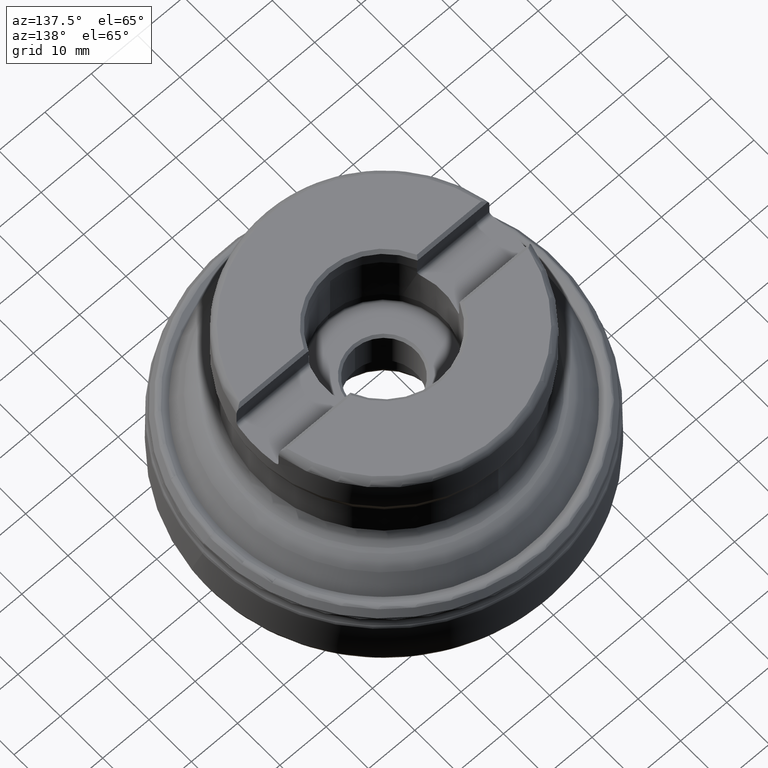
[diagram: clean part render]
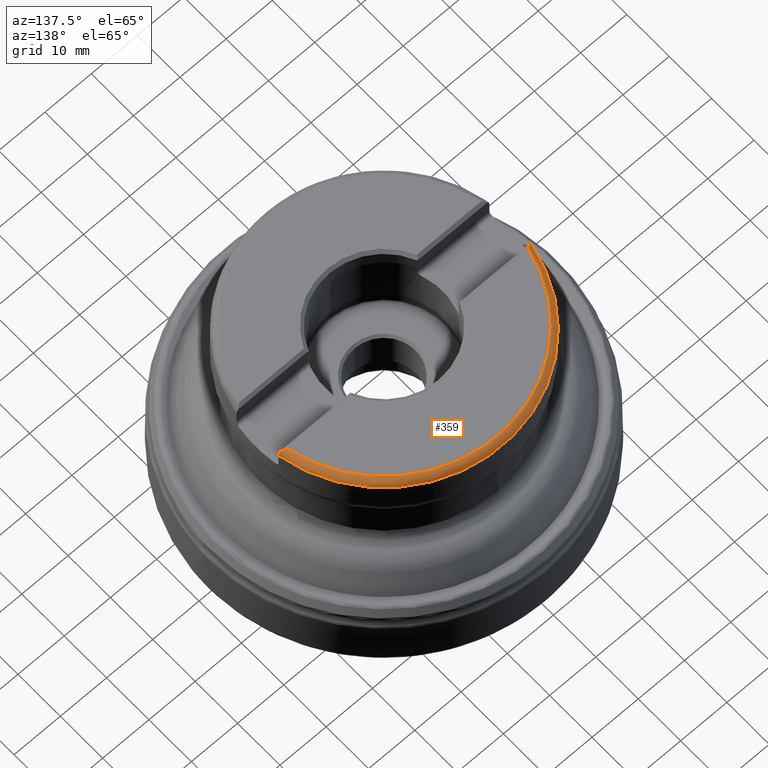
[diagram: same view with one face highlighted and labeled with its STEP entity id]
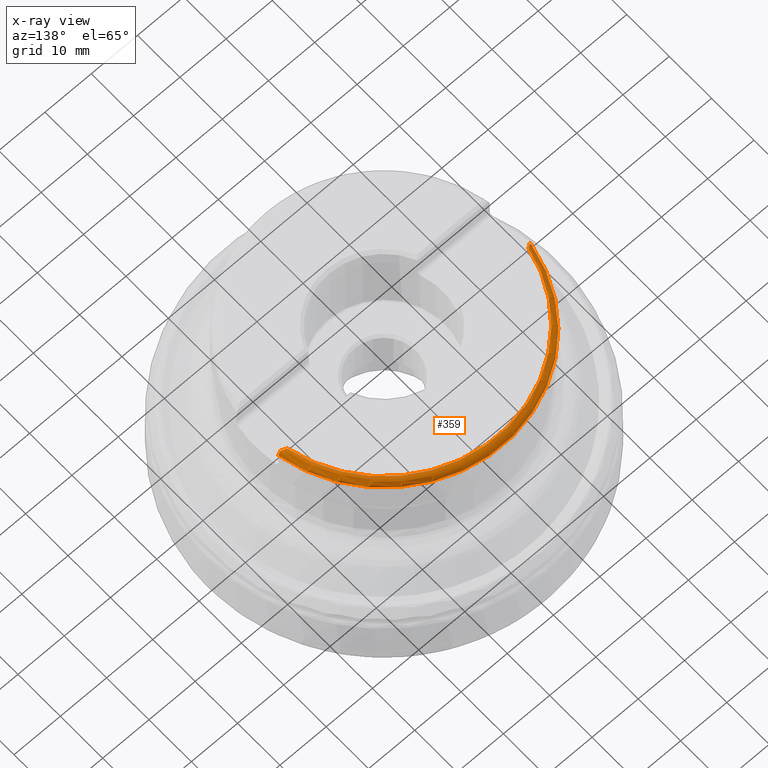
[diagram: x-ray of the same camera — body ghosted, the highlighted face saturated]
A machine part, auxiliary view. The second image highlights one B-rep face of the part: STEP entity #359.
The next image is the same camera in x-ray: the body ghosted, the highlighted face saturated — about 0% of this face is hidden behind the body in this view.
In plain terms, the highlighted toroidal blend (fillet) surface has major radius 25.8 mm and minor (blend) radius 2 mm.
Its self-contained STEP definition (entity closure, byte-faithful):
#359=ADVANCED_FACE('',(#453),#436,.T.);
#436=TOROIDAL_SURFACE('',#1199,25.8,2.);
#453=FACE_OUTER_BOUND('',#475,.T.);
#475=EDGE_LOOP('',(#671,#672,#673,#674,#675,#676));
#607=CIRCLE('',#1197,26.6717797887081);
#608=CIRCLE('',#1198,27.8);
#671=ORIENTED_EDGE('',*,*,#1009,.T.);
#672=ORIENTED_EDGE('',*,*,#1010,.T.);
#673=ORIENTED_EDGE('',*,*,#1011,.T.);
#674=ORIENTED_EDGE('',*,*,#1012,.T.);
#675=ORIENTED_EDGE('',*,*,#1013,.T.);
#676=ORIENTED_EDGE('',*,*,#1014,.F.);
#911=VERTEX_POINT('',#1885);
#912=VERTEX_POINT('',#1886);
#913=VERTEX_POINT('',#1894);
#914=VERTEX_POINT('',#1896);
#915=VERTEX_POINT('',#1904);
#916=VERTEX_POINT('',#1915);
#1009=EDGE_CURVE('',#911,#912,#1150,.T.);
#1010=EDGE_CURVE('',#912,#913,#1151,.T.);
#1011=EDGE_CURVE('',#913,#914,#607,.T.);
#1012=EDGE_CURVE('',#914,#915,#1152,.T.);
#1013=EDGE_CURVE('',#915,#916,#1153,.T.);
#1014=EDGE_CURVE('',#911,#916,#608,.T.);
#1150=B_SPLINE_CURVE_WITH_KNOTS('',3,(#1875,#1876,#1877,#1878,#1879,#1880,
#1881,#1882,#1883,#1884),.UNSPECIFIED.,.F.,.F.,(4,3,3,4),(0.,0.496366391203034,
0.803748092382904,1.),.UNSPECIFIED.);
#1151=B_SPLINE_CURVE_WITH_KNOTS('',3,(#1887,#1888,#1889,#1890,#1891,#1892,
#1893),.UNSPECIFIED.,.F.,.F.,(4,3,4),(0.,0.837754554308169,1.),
 .UNSPECIFIED.);
#1152=B_SPLINE_CURVE_WITH_KNOTS('',3,(#1897,#1898,#1899,#1900,#1901,#1902,
#1903),.UNSPECIFIED.,.F.,.F.,(4,3,4),(0.,0.843108759295357,1.),
 .UNSPECIFIED.);
#1153=B_SPLINE_CURVE_WITH_KNOTS('',3,(#1905,#1906,#1907,#1908,#1909,#1910,
#1911,#1912,#1913,#1914),.UNSPECIFIED.,.F.,.F.,(4,3,3,4),(0.,0.00355086894828348,
0.531781585821645,1.),.UNSPECIFIED.);
#1197=AXIS2_PLACEMENT_3D('',#1895,#1319,#1320);
#1198=AXIS2_PLACEMENT_3D('',#1916,#1321,#1322);
#1199=AXIS2_PLACEMENT_3D('',#1917,#1323,#1324);
#1319=DIRECTION('',(0.,-1.17145536458252E-15,-1.));
#1320=DIRECTION('',(0.,-1.,1.30079319019515E-15));
#1321=DIRECTION('',(0.,-1.17145536458252E-15,-1.));
#1322=DIRECTION('',(0.,1.,-1.24800250070274E-15));
#1323=DIRECTION('',(0.,-1.17145536458252E-15,-1.));
#1324=DIRECTION('',(0.,1.,-1.24800250070274E-15));
#1875=CARTESIAN_POINT('',(-27.3530395934346,4.96500000000005,42.65));
#1876=CARTESIAN_POINT('',(-27.3530395934346,4.96500000000005,42.8619693257852));
#1877=CARTESIAN_POINT('',(-27.3178695678813,4.96500000000005,43.0766298112396));
#1878=CARTESIAN_POINT('',(-27.2503724925809,4.96500000000005,43.2775654723347));
#1879=CARTESIAN_POINT('',(-27.2081873522731,4.96500000000005,43.4031486775094));
#1880=CARTESIAN_POINT('',(-27.1530399679243,4.96500000000005,43.5250690750317));
#1881=CARTESIAN_POINT('',(-27.0866616495757,4.96500000000005,43.6397191789913));
#1882=CARTESIAN_POINT('',(-27.0444460334364,4.96500000000005,43.7126349276802));
#1883=CARTESIAN_POINT('',(-26.9974981511336,4.96500000000005,43.7830043559091));
#1884=CARTESIAN_POINT('',(-26.9464056044586,4.96500000000005,43.85));
#1885=CARTESIAN_POINT('',(-27.3530395934346,4.96500000000005,42.65));
#1886=CARTESIAN_POINT('',(-26.9464056044586,4.96500000000005,43.85));
#1887=CARTESIAN_POINT('',(-26.9464056044586,4.96500000000005,43.85));
#1888=CARTESIAN_POINT('',(-26.7583634423833,5.16359143131583,44.0485914313158));
#1889=CARTESIAN_POINT('',(-26.5236458824023,5.34564686064071,44.2306468606407));
#1890=CARTESIAN_POINT('',(-26.2506779436443,5.48658208035585,44.3715820803558));
#1891=CARTESIAN_POINT('',(-26.1969522793122,5.51432100948229,44.3993210094822));
#1892=CARTESIAN_POINT('',(-26.1415902278621,5.5405514029359,44.4255514029358));
#1893=CARTESIAN_POINT('',(-26.0847582334462,5.56500000000005,44.45));
#1894=CARTESIAN_POINT('',(-26.0847582334462,5.56500000000005,44.45));
#1895=CARTESIAN_POINT('',(0.,5.20711909556932E-14,44.45));
#1896=CARTESIAN_POINT('',(26.0847582334462,5.56500000000005,44.45));
#1897=CARTESIAN_POINT('',(26.0847582334462,5.56500000000005,44.45));
#1898=CARTESIAN_POINT('',(26.3752333333916,5.44004030522383,44.3250403052238));
#1899=CARTESIAN_POINT('',(26.6290858604657,5.26754689622545,44.1525468962254));
#1900=CARTESIAN_POINT('',(26.8345417139795,5.07598290354636,43.9609829035463));
#1901=CARTESIAN_POINT('',(26.8733634658994,5.03978607744773,43.9247860774477));
#1902=CARTESIAN_POINT('',(26.9106620273024,5.00274881159351,43.8877488115935));
#1903=CARTESIAN_POINT('',(26.9464056044586,4.96500000000005,43.85));
#1904=CARTESIAN_POINT('',(26.9464056044586,4.96500000000005,43.85));
#1905=CARTESIAN_POINT('',(26.9464056044586,4.96500000000005,43.85));
#1906=CARTESIAN_POINT('',(26.9473404598275,4.96500000000005,43.8487741609756));
#1907=CARTESIAN_POINT('',(26.9482738996269,4.96500000000005,43.8475472411087));
#1908=CARTESIAN_POINT('',(26.9492059199661,4.96500000000005,43.8463192451959));
#1909=CARTESIAN_POINT('',(27.0858578230363,4.96500000000005,43.6662716953761));
#1910=CARTESIAN_POINT('',(27.1930609396988,4.96500000000005,43.4597818407239));
#1911=CARTESIAN_POINT('',(27.2612286328295,4.96500000000005,43.2442730742617));
#1912=CARTESIAN_POINT('',(27.3216782803847,4.96500000000005,43.0531645244577));
#1913=CARTESIAN_POINT('',(27.3530395934346,4.96500000000005,42.8504411078041));
#1914=CARTESIAN_POINT('',(27.3530395934346,4.96500000000005,42.65));
#1915=CARTESIAN_POINT('',(27.3530395934346,4.96500000000005,42.65));
#1916=CARTESIAN_POINT('',(0.,4.99625712994447E-14,42.65));
#1917=CARTESIAN_POINT('',(0.,4.99625712994447E-14,42.65));